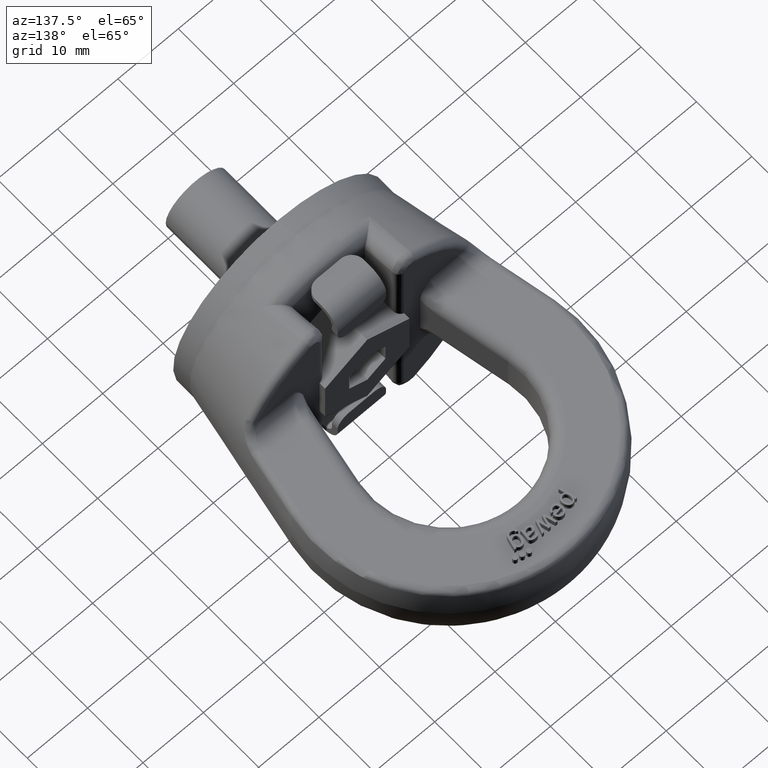
[diagram: clean part render]
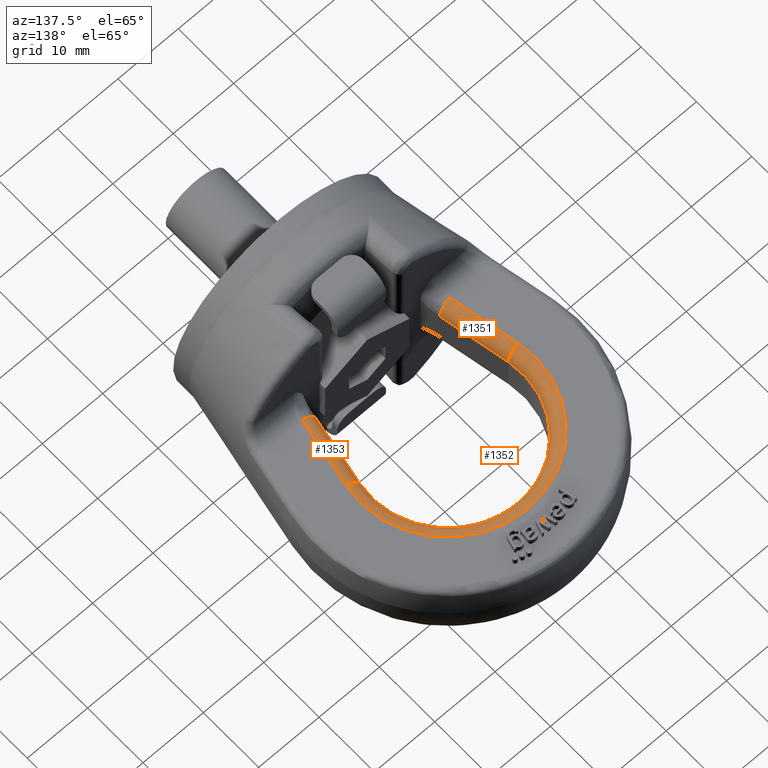
[diagram: same view with one multi-face feature highlighted, each face labeled with its STEP entity id]
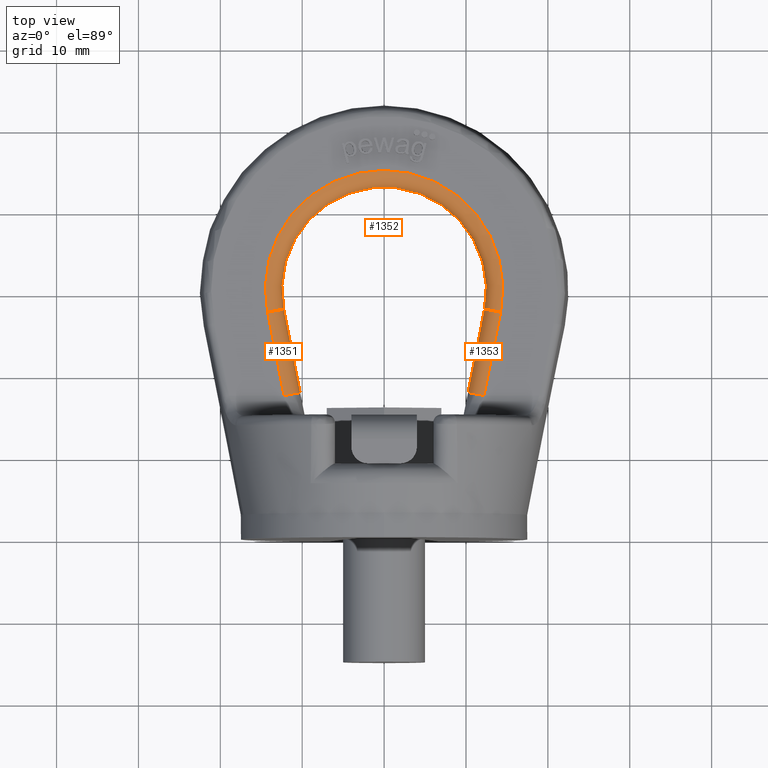
[diagram: same view with one multi-face feature highlighted, each face labeled with its STEP entity id]
A machine part, auxiliary view. The highlighted faces form ONE feature: a constant-radius fillet chain: 3 tangent blend faces with common blend radius 2 mm. The faces share edges in the B-rep.
A second angle (top view) of the same feature is appended — it is thin or edge-on in the first view.
Their STEP definitions:
[1] entity #1351 (Cylinder):
#1063=CYLINDRICAL_SURFACE('',#5172,2.);
#1127=FACE_OUTER_BOUND('',#1867,.T.);
#1351=ADVANCED_FACE('',(#1127),#1063,.T.);
#1702=CIRCLE('',#5170,2.);
#1703=CIRCLE('',#5171,2.);
#1867=EDGE_LOOP('',(#2958,#2959,#2960,#2961));
#2105=LINE('',#6391,#2381);
#2147=LINE('',#6874,#2423);
#2381=VECTOR('',#5389,1.);
#2423=VECTOR('',#5487,1.);
#2958=ORIENTED_EDGE('',*,*,#4422,.F.);
#2959=ORIENTED_EDGE('',*,*,#4375,.F.);
#2960=ORIENTED_EDGE('',*,*,#4423,.T.);
#2961=ORIENTED_EDGE('',*,*,#4283,.F.);
#3892=VERTEX_POINT('',#6371);
#3899=VERTEX_POINT('',#6390);
#3985=VERTEX_POINT('',#6869);
#3987=VERTEX_POINT('',#6875);
#4283=EDGE_CURVE('',#3899,#3892,#2105,.T.);
#4375=EDGE_CURVE('',#3985,#3987,#2147,.T.);
#4422=EDGE_CURVE('',#3987,#3899,#1702,.T.);
#4423=EDGE_CURVE('',#3985,#3892,#1703,.T.);
#5170=AXIS2_PLACEMENT_3D('',#7188,#5595,#5596);
#5171=AXIS2_PLACEMENT_3D('',#7207,#5597,#5598);
#5172=AXIS2_PLACEMENT_3D('',#7208,#5599,#5600);
#5389=DIRECTION('',(-0.193894894562375,0.981022308544839,-1.06362651818106E-16));
#5487=DIRECTION('',(0.193894894562375,-0.981022308544839,1.06362651818106E-16));
#5595=DIRECTION('',(0.193894894562376,-0.981022308544839,0.));
#5596=DIRECTION('',(-0.981022308544839,-0.193894894562376,0.));
#5597=DIRECTION('',(0.193894894562374,-0.981022308544839,0.));
#5598=DIRECTION('',(-0.981022308544839,-0.193894894562374,0.));
#5599=DIRECTION('',(0.193894894562375,-0.981022308544839,1.06362651818106E-16));
#5600=DIRECTION('',(0.981022308544839,0.193894894562376,0.));
#6371=CARTESIAN_POINT('',(-14.2248234739002,27.6885240288456,5.));
#6390=CARTESIAN_POINT('',(-12.2111049528101,17.5,5.00000000000001));
#6391=CARTESIAN_POINT('',(-14.2248234739002,27.6885240288456,5.));
#6869=CARTESIAN_POINT('',(-12.2627788568105,28.0763138179703,3.));
#6874=CARTESIAN_POINT('',(-10.172415330179,17.5,3.00000000000001));
#6875=CARTESIAN_POINT('',(-10.2490603357205,17.8877897891247,3.00000000000001));
#7188=CARTESIAN_POINT('',(-12.2111049528101,17.5,3.));
#7207=CARTESIAN_POINT('',(-14.2248234739002,27.6885240288456,3.));
#7208=CARTESIAN_POINT('',(-18.715032672775,50.4069942808428,3.));
[2] entity #1352 (Torus):
#1018=TOROIDAL_SURFACE('',#5174,14.5,2.);
#1128=FACE_OUTER_BOUND('',#1868,.T.);
#1352=ADVANCED_FACE('',(#1128),#1018,.T.);
#1669=CIRCLE('',#5096,14.5);
#1687=CIRCLE('',#5123,12.5);
#1703=CIRCLE('',#5171,2.);
#1704=CIRCLE('',#5173,2.);
#1868=EDGE_LOOP('',(#2962,#2963,#2964,#2965));
#2962=ORIENTED_EDGE('',*,*,#4423,.F.);
#2963=ORIENTED_EDGE('',*,*,#4372,.F.);
#2964=ORIENTED_EDGE('',*,*,#4424,.T.);
#2965=ORIENTED_EDGE('',*,*,#4276,.F.);
#3892=VERTEX_POINT('',#6371);
#3893=VERTEX_POINT('',#6372);
#3984=VERTEX_POINT('',#6867);
#3985=VERTEX_POINT('',#6869);
#4276=EDGE_CURVE('',#3892,#3893,#1669,.T.);
#4372=EDGE_CURVE('',#3984,#3985,#1687,.T.);
#4423=EDGE_CURVE('',#3985,#3892,#1703,.T.);
#4424=EDGE_CURVE('',#3984,#3893,#1704,.T.);
#5096=AXIS2_PLACEMENT_3D('',#6370,#5382,#5383);
#5123=AXIS2_PLACEMENT_3D('',#6868,#5480,#5481);
#5171=AXIS2_PLACEMENT_3D('',#7207,#5597,#5598);
#5173=AXIS2_PLACEMENT_3D('',#7209,#5601,#5602);
#5174=AXIS2_PLACEMENT_3D('',#7210,#5603,#5604);
#5382=DIRECTION('',(0.,-1.0842021724855E-16,-1.));
#5383=DIRECTION('',(0.,1.,-1.19636101791504E-16));
#5480=DIRECTION('',(0.,1.0842021724855E-16,1.));
#5481=DIRECTION('',(0.,1.,-1.04083408558608E-16));
#5597=DIRECTION('',(0.193894894562374,-0.981022308544839,0.));
#5598=DIRECTION('',(-0.981022308544839,-0.193894894562374,0.));
#5601=DIRECTION('',(0.193894894562376,0.981022308544839,0.));
#5602=DIRECTION('',(0.981022308544839,-0.193894894562376,0.));
#5603=DIRECTION('',(0.,-1.0842021724855E-16,-1.));
#5604=DIRECTION('',(0.,1.,-1.05134756119807E-16));
#6370=CARTESIAN_POINT('',(0.,30.5,5.));
#6371=CARTESIAN_POINT('',(-14.2248234739002,27.6885240288456,5.));
#6372=CARTESIAN_POINT('',(14.2248234739002,27.6885240288456,5.));
#6867=CARTESIAN_POINT('',(12.2627788568105,28.0763138179703,3.));
#6868=CARTESIAN_POINT('',(0.,30.5,3.));
#6869=CARTESIAN_POINT('',(-12.2627788568105,28.0763138179703,3.));
#7207=CARTESIAN_POINT('',(-14.2248234739002,27.6885240288456,3.));
#7209=CARTESIAN_POINT('',(14.2248234739002,27.6885240288456,3.));
#7210=CARTESIAN_POINT('',(0.,30.5,3.));
[3] entity #1353 (Cylinder):
#1064=CYLINDRICAL_SURFACE('',#5176,2.);
#1129=FACE_OUTER_BOUND('',#1869,.T.);
#1353=ADVANCED_FACE('',(#1129),#1064,.T.);
#1704=CIRCLE('',#5173,2.);
#1705=CIRCLE('',#5175,2.);
#1869=EDGE_LOOP('',(#2966,#2967,#2968,#2969));
#2102=LINE('',#6373,#2378);
#2149=LINE('',#6883,#2425);
#2378=VECTOR('',#5384,1.);
#2425=VECTOR('',#5497,1.);
#2966=ORIENTED_EDGE('',*,*,#4424,.F.);
#2967=ORIENTED_EDGE('',*,*,#4380,.F.);
#2968=ORIENTED_EDGE('',*,*,#4425,.F.);
#2969=ORIENTED_EDGE('',*,*,#4277,.F.);
#3893=VERTEX_POINT('',#6372);
#3894=VERTEX_POINT('',#6374);
#3984=VERTEX_POINT('',#6867);
#3989=VERTEX_POINT('',#6882);
#4277=EDGE_CURVE('',#3893,#3894,#2102,.T.);
#4380=EDGE_CURVE('',#3989,#3984,#2149,.T.);
#4424=EDGE_CURVE('',#3984,#3893,#1704,.T.);
#4425=EDGE_CURVE('',#3894,#3989,#1705,.T.);
#5173=AXIS2_PLACEMENT_3D('',#7209,#5601,#5602);
#5175=AXIS2_PLACEMENT_3D('',#7211,#5605,#5606);
#5176=AXIS2_PLACEMENT_3D('',#7212,#5607,#5608);
#5384=DIRECTION('',(-0.193894894562375,-0.981022308544839,1.06362651818106E-16));
#5497=DIRECTION('',(0.193894894562375,0.981022308544839,-1.06362651818106E-16));
#5601=DIRECTION('',(0.193894894562376,0.981022308544839,0.));
#5602=DIRECTION('',(0.981022308544839,-0.193894894562376,0.));
#5605=DIRECTION('',(-0.193894894562375,-0.981022308544839,0.));
#5606=DIRECTION('',(0.98102230854484,-0.193894894562376,0.));
#5607=DIRECTION('',(0.193894894562375,0.981022308544839,-1.06362651818106E-16));
#5608=DIRECTION('',(-0.981022308544839,0.193894894562376,0.));
#6372=CARTESIAN_POINT('',(14.2248234739002,27.6885240288456,5.));
#6373=CARTESIAN_POINT('',(12.1344599472687,17.1122102108752,5.00000000000001));
#6374=CARTESIAN_POINT('',(12.2111049528101,17.5,5.00000000000001));
#6867=CARTESIAN_POINT('',(12.2627788568105,28.0763138179703,3.));
#6882=CARTESIAN_POINT('',(10.2490603357205,17.8877897891247,3.00000000000001));
#6883=CARTESIAN_POINT('',(12.2627788568105,28.0763138179703,3.));
#7209=CARTESIAN_POINT('',(14.2248234739002,27.6885240288456,3.));
#7211=CARTESIAN_POINT('',(12.2111049528101,17.5,3.00000000000001));
#7212=CARTESIAN_POINT('',(22.0986033851369,67.5263638179203,3.));